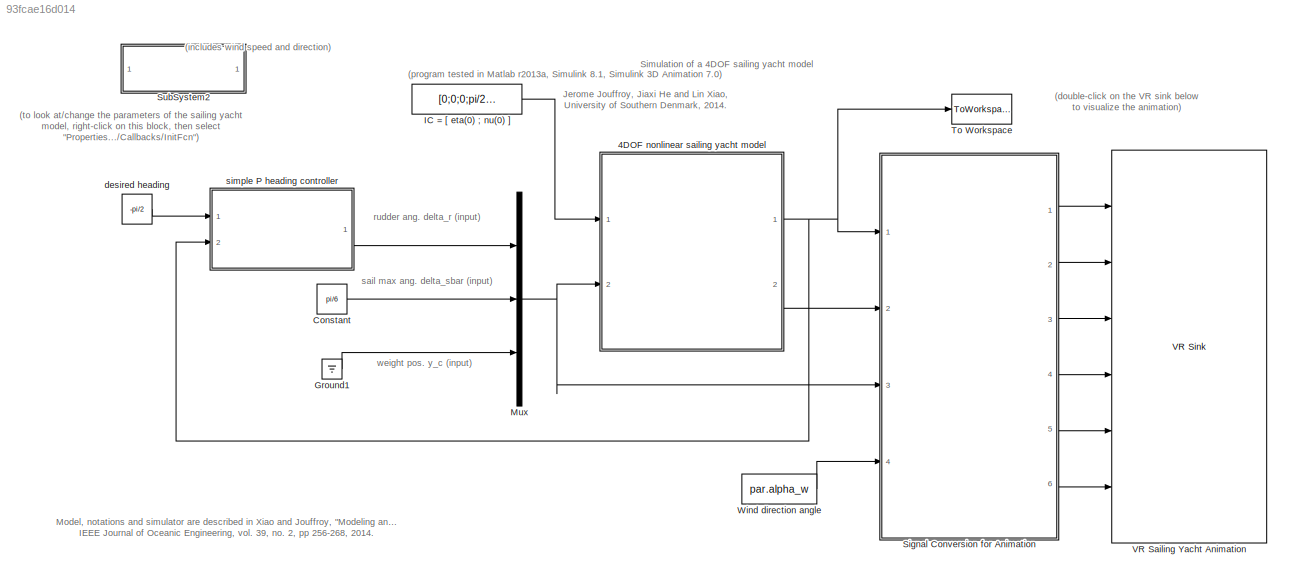
MODEL slx_93fcae16d014
KIND model
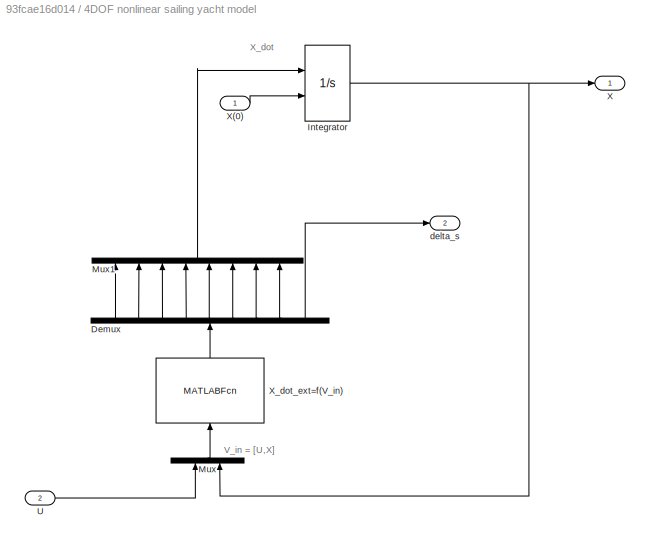
BLOCK [SubSystem] 4DOF nonlinear sailing yacht model
  FunctionWithSeparateData = off
  MaskHideContents = off
  MinAlgLoopOccurrences = off
  Opaque = off
  Ports = [2, 2]
  PropExecContextOutsideSubsystem = off
  RTWSystemCode = Auto
  RequestExecContextInheritance = off
BLOCK [Demux] 4DOF nonlinear sailing yacht model/Demux
  DisplayOption = bar
  Outputs = 9
  Ports = [1, 9]
BLOCK [Integrator] 4DOF nonlinear sailing yacht model/Integrator
  InitialCondition = [0;0;0;pi;1;0;0;0]
  InitialConditionSource = external
  Ports = [2, 1]
BLOCK [Mux] 4DOF nonlinear sailing yacht model/Mux
  DisplayOption = bar
  Inputs = 2
  Ports = [2, 1]
BLOCK [Mux] 4DOF nonlinear sailing yacht model/Mux1
  DisplayOption = bar
  Inputs = 8
  Ports = [8, 1]
BLOCK [Inport] 4DOF nonlinear sailing yacht model/U
  IconDisplay = Port number
  Port = 2
BLOCK [Outport] 4DOF nonlinear sailing yacht model/X
  IconDisplay = Port number
BLOCK [Inport] 4DOF nonlinear sailing yacht model/X(0)
  IconDisplay = Port number
BLOCK [MATLABFcn] 4DOF nonlinear sailing yacht model/X_dot_ext=f(V_in)
  MATLABFcn = f
  OutputDimensions = 9
  Ports = [1, 1]
BLOCK [Outport] 4DOF nonlinear sailing yacht model/delta_s
  IconDisplay = Port number
  Port = 2
BLOCK [Constant] Constant
  Value = pi/6
BLOCK [Ground] Ground1
BLOCK [Constant] IC = [ eta(0) ; nu(0) ]
  Value = [0;0;0;pi/2;3;0;0;0]
BLOCK [Mux] Mux
  DisplayOption = bar
  Inputs = 3
  Ports = [3, 1]
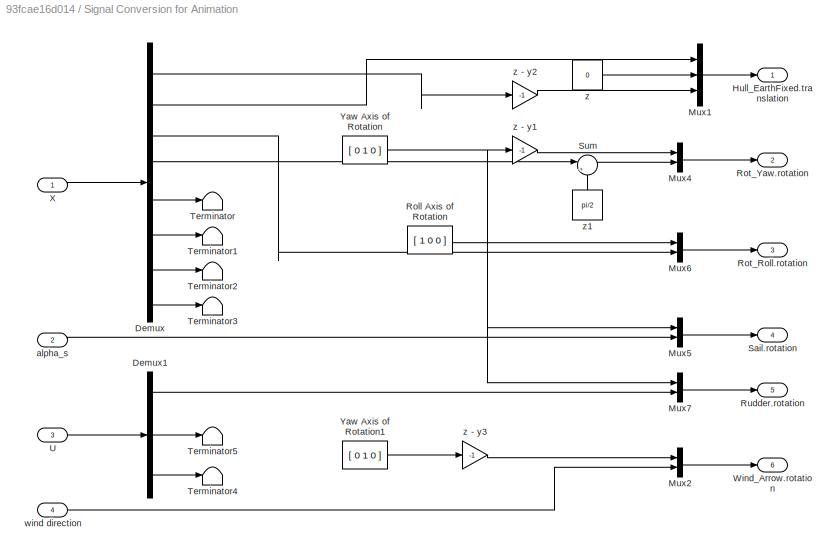
BLOCK [SubSystem] Signal Conversion for Animation
  FunctionWithSeparateData = off
  MaskHideContents = off
  MinAlgLoopOccurrences = off
  Opaque = off
  Ports = [4, 6]
  PropExecContextOutsideSubsystem = off
  RTWSystemCode = Auto
  RequestExecContextInheritance = off
BLOCK [Demux] Signal Conversion for Animation/Demux
  DisplayOption = bar
  Outputs = 8
  Ports = [1, 8]
BLOCK [Demux] Signal Conversion for Animation/Demux1
  DisplayOption = bar
  Outputs = 3
  Ports = [1, 3]
BLOCK [Outport] Signal Conversion for Animation/Hull_EarthFixed.translation
  IconDisplay = Port number
BLOCK [Mux] Signal Conversion for Animation/Mux1
  DisplayOption = bar
  Inputs = 3
  Ports = [3, 1]
BLOCK [Mux] Signal Conversion for Animation/Mux2
  DisplayOption = bar
  Inputs = 2
  Ports = [2, 1]
BLOCK [Mux] Signal Conversion for Animation/Mux4
  DisplayOption = bar
  Inputs = 2
  Ports = [2, 1]
BLOCK [Mux] Signal Conversion for Animation/Mux5
  DisplayOption = bar
  Inputs = 2
  Ports = [2, 1]
BLOCK [Mux] Signal Conversion for Animation/Mux6
  DisplayOption = bar
  Inputs = 2
  Ports = [2, 1]
BLOCK [Mux] Signal Conversion for Animation/Mux7
  DisplayOption = bar
  Inputs = 2
  Ports = [2, 1]
BLOCK [Constant] Signal Conversion for Animation/Roll Axis of Rotation
  Value = [ 1 0 0 ]
BLOCK [Outport] Signal Conversion for Animation/Rot_Roll.rotation
  IconDisplay = Port number
  Port = 3
BLOCK [Outport] Signal Conversion for Animation/Rot_Yaw.rotation
  IconDisplay = Port number
  Port = 2
BLOCK [Outport] Signal Conversion for Animation/Rudder.rotation
  IconDisplay = Port number
  Port = 5
BLOCK [Outport] Signal Conversion for Animation/Sail.rotation
  IconDisplay = Port number
  Port = 4
BLOCK [Sum] Signal Conversion for Animation/Sum
  IconShape = round
  InputSameDT = off
  Inputs = |+-
  OutDataTypeStr = Inherit: Inherit via internal rule
  Ports = [2, 1]
BLOCK [Terminator] Signal Conversion for Animation/Terminator
BLOCK [Terminator] Signal Conversion for Animation/Terminator1
BLOCK [Terminator] Signal Conversion for Animation/Terminator2
BLOCK [Terminator] Signal Conversion for Animation/Terminator3
BLOCK [Terminator] Signal Conversion for Animation/Terminator4
BLOCK [Terminator] Signal Conversion for Animation/Terminator5
BLOCK [Inport] Signal Conversion for Animation/U
  IconDisplay = Port number
  Port = 3
BLOCK [Outport] Signal Conversion for Animation/Wind_Arrow.rotation
  IconDisplay = Port number
  Port = 6
BLOCK [Inport] Signal Conversion for Animation/X
  IconDisplay = Port number
BLOCK [Constant] Signal Conversion for Animation/Yaw Axis of Rotation
  Value = [ 0 1 0 ]
BLOCK [Constant] Signal Conversion for Animation/Yaw Axis of Rotation1
  Value = [ 0 1 0 ]
BLOCK [Inport] Signal Conversion for Animation/alpha_s
  IconDisplay = Port number
  Port = 2
BLOCK [Inport] Signal Conversion for Animation/wind direction
  IconDisplay = Port number
  Port = 4
BLOCK [Constant] Signal Conversion for Animation/z
  Value = 0
BLOCK [Gain] Signal Conversion for Animation/z - y1
  Gain = -1
  OutDataTypeStr = Inherit: Inherit via internal rule
  ParamDataTypeStr = Inherit: Inherit via internal rule
  SaturateOnIntegerOverflow = off
BLOCK [Gain] Signal Conversion for Animation/z - y2
  Gain = -1
  OutDataTypeStr = Inherit: Inherit via internal rule
  ParamDataTypeStr = Inherit: Inherit via internal rule
  SaturateOnIntegerOverflow = off
BLOCK [Gain] Signal Conversion for Animation/z - y3
  Gain = -1
  OutDataTypeStr = Inherit: Inherit via internal rule
  ParamDataTypeStr = Inherit: Inherit via internal rule
  SaturateOnIntegerOverflow = off
BLOCK [Constant] Signal Conversion for Animation/z1
  Value = pi/2
BLOCK [SubSystem] SubSystem2
  FunctionWithSeparateData = off
  InitFcn = global par\npar.m = 25900;                         % (kg),mass of the vehicle\npar.Ixx = 133690;          \npar.Izz = 24760;      \npar.Ixz = 2180;                        % moment of inertia\npar.a11 = 970;   \npar.a22 = 17430; \npar.a44 = 106500;\npar.a66 = 101650;\npar.a24 = -13160;\npar.a26 = -6190; \npar.a46 = 4730;                        % (kg),added mass coef.\n\npar.vt = 10;                           % ...<+1841ch>
  MaskHideContents = off
  MinAlgLoopOccurrences = off
  Opaque = off
  Ports = []
  PropExecContextOutsideSubsystem = off
  RTWSystemCode = Auto
  RequestExecContextInheritance = off
BLOCK [ToWorkspace] To Workspace
  MaxDataPoints = inf
  Ports = [1]
  SampleTime = -1
  SaveFormat = Structure With Time
  VariableName = X
BLOCK [Reference] VR Sailing Yacht Animation  REF=vrlib/VR Sink
  AllowVariableSize = off
  AutoView = on
  FieldsWritten = Hull_EarthFixed.translation.3.1.1.double#Rot_Yaw.rotation.4.1.1.double#Rot_Roll.rotation.4.1.1.double#Sail.rotation.4.1.1.double#Rudder.rotation.4.1.1.double#Wind_Arrow.rotation.4.1.1.double
  FigureProperties = {'Position', 'Name', 'Viewpoint', 'CameraBound', 'CameraDirection', 'CameraPosition', 'CameraUpVector', 'ZoomFactor', 'Antialiasing', 'Headlight', 'Lighting', 'NavPanel', 'StatusBar', 'ToolBar', 'Textures', 'Transparency', 'Triad', 'Wireframe', 'NavZones', 'NavMode', 'NavSpeed', 'CaptureFileFormat', 'CaptureFileName', 'Record2DCompressMethod', 'Record2DCompressQuality', 'Record2D', 'Record2DFileNa...<+621ch>
  InstantiateOnLoad = on
  Ports = [6]
  RemoteChange = off
  RemoteView = off
  SampleTime = -1
  SourceBlock = vrlib/VR Sink
  SourceType = Virtual Reality Sink
  VideoDimensions = []
  ViewEnable = on
  WorldDescription = Sailing Yacht VR animation
  WorldFileName = SailingYachtAnimation.wrl
BLOCK [Constant] Wind direction angle
  Value = par.alpha_w
BLOCK [Constant] desired heading
  Value = -pi/2
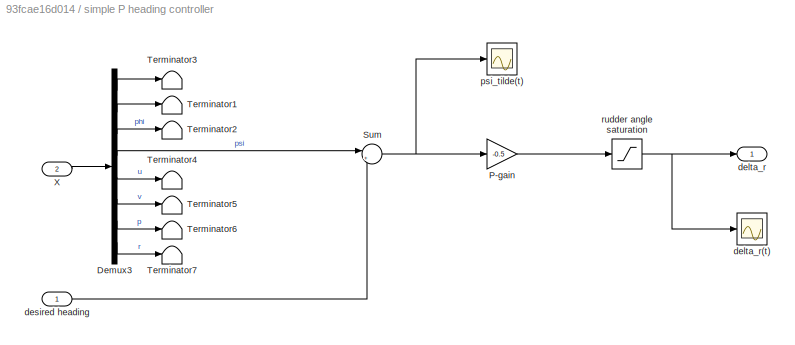
BLOCK [SubSystem] simple P heading controller
  FunctionWithSeparateData = off
  MaskHideContents = off
  MinAlgLoopOccurrences = off
  Opaque = off
  Ports = [2, 1]
  PropExecContextOutsideSubsystem = off
  RTWSystemCode = Auto
  RequestExecContextInheritance = off
BLOCK [Demux] simple P heading controller/Demux3
  DisplayOption = bar
  Outputs = 8
  Ports = [1, 8]
BLOCK [Gain] simple P heading controller/P-gain
  Gain = -0.5
  OutDataTypeStr = Inherit: Inherit via internal rule
  ParamDataTypeStr = Inherit: Inherit via internal rule
  SaturateOnIntegerOverflow = off
BLOCK [Sum] simple P heading controller/Sum
  IconShape = round
  InputSameDT = off
  Inputs = |+-
  OutDataTypeStr = Inherit: Inherit via internal rule
  Ports = [2, 1]
BLOCK [Terminator] simple P heading controller/Terminator1
BLOCK [Terminator] simple P heading controller/Terminator2
BLOCK [Terminator] simple P heading controller/Terminator3
BLOCK [Terminator] simple P heading controller/Terminator4
BLOCK [Terminator] simple P heading controller/Terminator5
BLOCK [Terminator] simple P heading controller/Terminator6
BLOCK [Terminator] simple P heading controller/Terminator7
BLOCK [Inport] simple P heading controller/X
  IconDisplay = Port number
  Port = 2
BLOCK [Outport] simple P heading controller/delta_r
  IconDisplay = Port number
BLOCK [Scope] simple P heading controller/delta_r(t)
  DataFormat = StructureWithTime
  Floating = off
  LimitDataPoints = off
  NumInputPorts = 1
  Ports = [1]
  SampleTime = 0
  ShowLegends = off
  YMax = 0
  YMin = -1.1
BLOCK [Inport] simple P heading controller/desired heading
  IconDisplay = Port number
BLOCK [Scope] simple P heading controller/psi_tilde(t)
  DataFormat = StructureWithTime
  Floating = off
  LimitDataPoints = off
  NumInputPorts = 1
  Ports = [1]
  SampleTime = 0
  SaveName = ScopeData1
  ShowLegends = off
  YMax = 1.6
  YMin = 5.55112e-17
BLOCK [Saturate] simple P heading controller/rudder angle saturation
  InputPortMap = u0
  LinearizeAsGain = off
  LowerLimit = -pi/3
  Ports = [1, 1]
  UpperLimit = pi/3
ANNOTATION (root): sail max ang. delta_sbar (input)
ANNOTATION (root): (double-click on the VR sink below to visualize the animation)
ANNOTATION (root): (includes wind speed and direction)
ANNOTATION (root): (program tested in Matlab r2013a, Simulink 8.1, Simulink 3D Animation 7.0)
ANNOTATION (root): (to look at/change the parameters of the sailing yacht model, right-click on this block, then select "Properties.../Callbacks/InitFcn")
ANNOTATION (root): Jerome Jouffroy, Jiaxi He and Lin Xiao, University of Southern Denmark, 2014.
ANNOTATION (root): Model, notations and simulator are described in Xiao and Jouffroy, "Modeling and nonlinear heading control of sailing yachts", IEEE Journal of Oceanic Engineering, vol. 39, no. 2, pp 256-268, 2014.
ANNOTATION (root): Simulation of a 4DOF sailing yacht model
ANNOTATION (root): rudder ang. delta_r (input)
ANNOTATION (root): weight pos. y_c (input)
ANNOTATION 4DOF nonlinear sailing yacht model: V_in = [U,X]
ANNOTATION 4DOF nonlinear sailing yacht model: X_dot
LINE 4DOF nonlinear sailing yacht model/Demux:1 -> 4DOF nonlinear sailing yacht model/Mux1:1
LINE 4DOF nonlinear sailing yacht model/Demux:2 -> 4DOF nonlinear sailing yacht model/Mux1:2
LINE 4DOF nonlinear sailing yacht model/Demux:3 -> 4DOF nonlinear sailing yacht model/Mux1:3
LINE 4DOF nonlinear sailing yacht model/Demux:4 -> 4DOF nonlinear sailing yacht model/Mux1:4
LINE 4DOF nonlinear sailing yacht model/Demux:5 -> 4DOF nonlinear sailing yacht model/Mux1:5
LINE 4DOF nonlinear sailing yacht model/Demux:6 -> 4DOF nonlinear sailing yacht model/Mux1:6
LINE 4DOF nonlinear sailing yacht model/Demux:7 -> 4DOF nonlinear sailing yacht model/Mux1:7
LINE 4DOF nonlinear sailing yacht model/Demux:8 -> 4DOF nonlinear sailing yacht model/Mux1:8
LINE 4DOF nonlinear sailing yacht model/Demux:9 -> 4DOF nonlinear sailing yacht model/delta_s:1
NET 4DOF nonlinear sailing yacht model/Integrator:1 -> 4DOF nonlinear sailing yacht model/Mux:2, 4DOF nonlinear sailing yacht model/X:1
LINE 4DOF nonlinear sailing yacht model/Mux1:1 -> 4DOF nonlinear sailing yacht model/Integrator:1
LINE 4DOF nonlinear sailing yacht model/Mux:1 -> 4DOF nonlinear sailing yacht model/X_dot_ext=f(V_in):1
LINE 4DOF nonlinear sailing yacht model/U:1 -> 4DOF nonlinear sailing yacht model/Mux:1
LINE 4DOF nonlinear sailing yacht model/X(0):1 -> 4DOF nonlinear sailing yacht model/Integrator:2
LINE 4DOF nonlinear sailing yacht model/X_dot_ext=f(V_in):1 -> 4DOF nonlinear sailing yacht model/Demux:1
NET 4DOF nonlinear sailing yacht model:1 -> Signal Conversion for Animation:1, To Workspace:1, simple P heading controller:2
LINE 4DOF nonlinear sailing yacht model:2 -> Signal Conversion for Animation:2
LINE Constant:1 -> Mux:2
LINE Ground1:1 -> Mux:3
LINE IC = [ eta(0) ; nu(0) ]:1 -> 4DOF nonlinear sailing yacht model:1
NET Mux:1 -> 4DOF nonlinear sailing yacht model:2, Signal Conversion for Animation:3
LINE Signal Conversion for Animation/Demux1:1 -> Signal Conversion for Animation/Mux7:2
LINE Signal Conversion for Animation/Demux1:2 -> Signal Conversion for Animation/Terminator5:1
LINE Signal Conversion for Animation/Demux1:3 -> Signal Conversion for Animation/Terminator4:1
LINE Signal Conversion for Animation/Demux:1 -> Signal Conversion for Animation/z - y2:1
LINE Signal Conversion for Animation/Demux:2 -> Signal Conversion for Animation/Mux1:1
LINE Signal Conversion for Animation/Demux:3 -> Signal Conversion for Animation/Mux6:2
LINE Signal Conversion for Animation/Demux:4 -> Signal Conversion for Animation/Sum:1
LINE Signal Conversion for Animation/Demux:5 -> Signal Conversion for Animation/Terminator:1
LINE Signal Conversion for Animation/Demux:6 -> Signal Conversion for Animation/Terminator1:1
LINE Signal Conversion for Animation/Demux:7 -> Signal Conversion for Animation/Terminator2:1
LINE Signal Conversion for Animation/Demux:8 -> Signal Conversion for Animation/Terminator3:1
LINE Signal Conversion for Animation/Mux1:1 -> Signal Conversion for Animation/Hull_EarthFixed.translation:1
LINE Signal Conversion for Animation/Mux2:1 -> Signal Conversion for Animation/Wind_Arrow.rotation:1
LINE Signal Conversion for Animation/Mux4:1 -> Signal Conversion for Animation/Rot_Yaw.rotation:1
LINE Signal Conversion for Animation/Mux5:1 -> Signal Conversion for Animation/Sail.rotation:1
LINE Signal Conversion for Animation/Mux6:1 -> Signal Conversion for Animation/Rot_Roll.rotation:1
LINE Signal Conversion for Animation/Mux7:1 -> Signal Conversion for Animation/Rudder.rotation:1
LINE Signal Conversion for Animation/Roll Axis of Rotation:1 -> Signal Conversion for Animation/Mux6:1
LINE Signal Conversion for Animation/Sum:1 -> Signal Conversion for Animation/Mux4:2
LINE Signal Conversion for Animation/U:1 -> Signal Conversion for Animation/Demux1:1
LINE Signal Conversion for Animation/X:1 -> Signal Conversion for Animation/Demux:1
LINE Signal Conversion for Animation/Yaw Axis of Rotation1:1 -> Signal Conversion for Animation/z - y3:1
NET Signal Conversion for Animation/Yaw Axis of Rotation:1 -> Signal Conversion for Animation/Mux5:1, Signal Conversion for Animation/Mux7:1, Signal Conversion for Animation/z - y1:1
LINE Signal Conversion for Animation/alpha_s:1 -> Signal Conversion for Animation/Mux5:2
LINE Signal Conversion for Animation/wind direction:1 -> Signal Conversion for Animation/Mux2:2
LINE Signal Conversion for Animation/z - y1:1 -> Signal Conversion for Animation/Mux4:1
LINE Signal Conversion for Animation/z - y2:1 -> Signal Conversion for Animation/Mux1:3
LINE Signal Conversion for Animation/z - y3:1 -> Signal Conversion for Animation/Mux2:1
LINE Signal Conversion for Animation/z1:1 -> Signal Conversion for Animation/Sum:2
LINE Signal Conversion for Animation/z:1 -> Signal Conversion for Animation/Mux1:2
LINE Signal Conversion for Animation:1 -> VR Sailing Yacht Animation:1
LINE Signal Conversion for Animation:2 -> VR Sailing Yacht Animation:2
LINE Signal Conversion for Animation:3 -> VR Sailing Yacht Animation:3
LINE Signal Conversion for Animation:4 -> VR Sailing Yacht Animation:4
LINE Signal Conversion for Animation:5 -> VR Sailing Yacht Animation:5
LINE Signal Conversion for Animation:6 -> VR Sailing Yacht Animation:6
LINE Wind direction angle:1 -> Signal Conversion for Animation:4
LINE desired heading:1 -> simple P heading controller:1
LINE simple P heading controller/Demux3:1 -> simple P heading controller/Terminator3:1
LINE simple P heading controller/Demux3:2 -> simple P heading controller/Terminator1:1
LINE simple P heading controller/Demux3:3 -> simple P heading controller/Terminator2:1
LINE simple P heading controller/Demux3:4 -> simple P heading controller/Sum:1
LINE simple P heading controller/Demux3:5 -> simple P heading controller/Terminator4:1
LINE simple P heading controller/Demux3:6 -> simple P heading controller/Terminator5:1
LINE simple P heading controller/Demux3:7 -> simple P heading controller/Terminator6:1
LINE simple P heading controller/Demux3:8 -> simple P heading controller/Terminator7:1
LINE simple P heading controller/P-gain:1 -> simple P heading controller/rudder angle saturation:1
NET simple P heading controller/Sum:1 -> simple P heading controller/P-gain:1, simple P heading controller/psi_tilde(t):1
LINE simple P heading controller/X:1 -> simple P heading controller/Demux3:1
LINE simple P heading controller/desired heading:1 -> simple P heading controller/Sum:2
NET simple P heading controller/rudder angle saturation:1 -> simple P heading controller/delta_r(t):1, simple P heading controller/delta_r:1
LINE simple P heading controller:1 -> Mux:1
note: NET lines group one-source signal fan-out (src -> all destinations, sorted); 1:1 wires keep LINE
